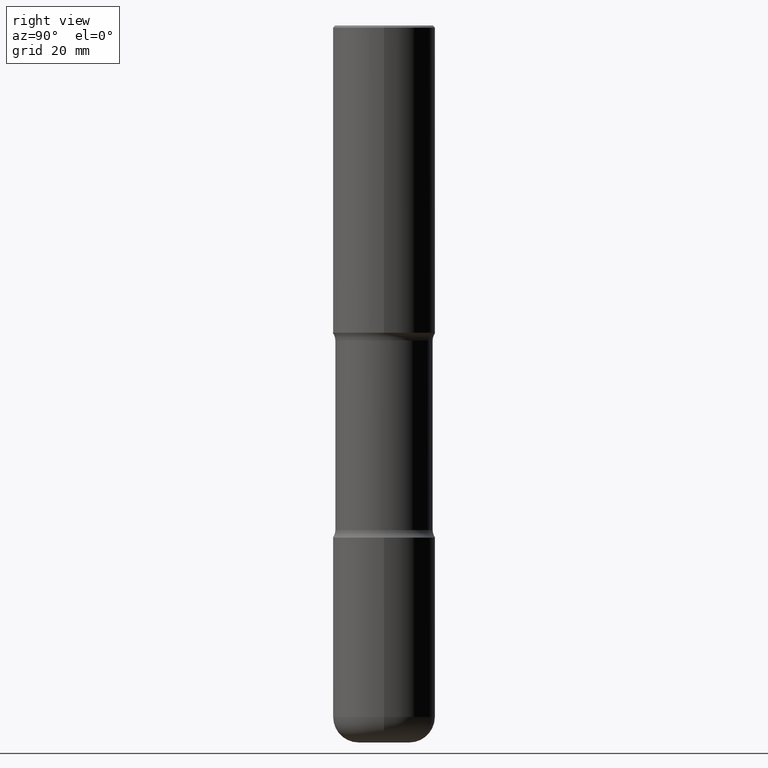
[diagram: clean part render]
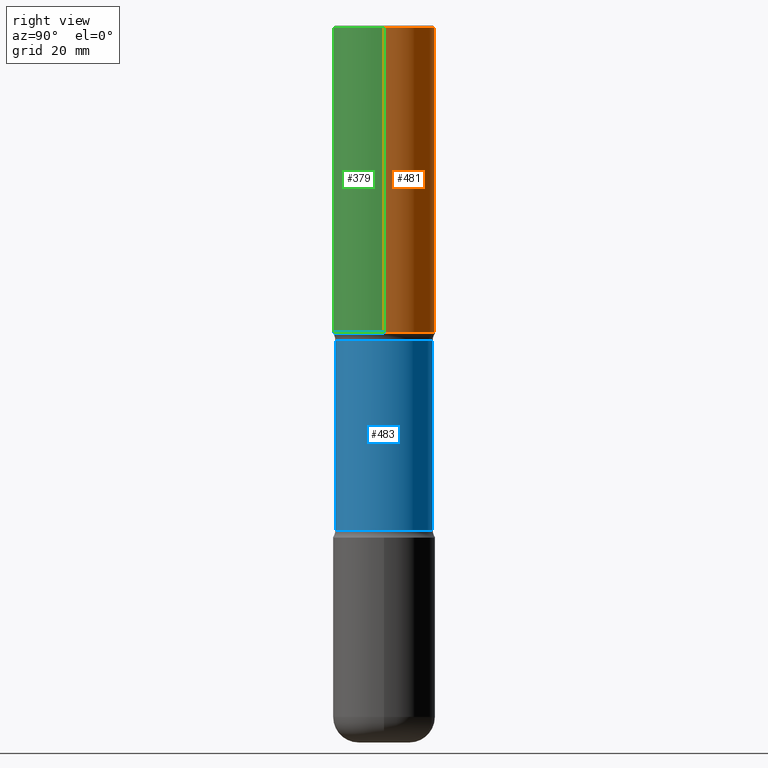
[diagram: same view with three faces highlighted in distinct colors, each labeled with its STEP entity id]
A machine part, right view with three faces highlighted in distinct colors.
Their STEP definitions:

[orange] entity #481 — the highlighted cylindrical surface (partial cylindrical patch) has radius 12.7 mm, axis along (-0, 0, 1).
#38 = AXIS2_PLACEMENT_3D ( 'NONE', #124, #304, #430 ) ;
#59 = VERTEX_POINT ( 'NONE', #159 ) ;
#103 = VECTOR ( 'NONE', #414, 39.37007874015748143 ) ;
#114 = LINE ( 'NONE', #190, #387 ) ;
#117 = ORIENTED_EDGE ( 'NONE', *, *, #438, .T. ) ;
#121 = EDGE_CURVE ( 'NONE', #143, #382, #166, .T. ) ;
#124 = CARTESIAN_POINT ( 'NONE',  ( 7.336406418555407548E-29, -1.047444401652943320E-14, -2.999999999999999112 ) ) ;
#143 = VERTEX_POINT ( 'NONE', #297 ) ;
#149 = EDGE_CURVE ( 'NONE', #59, #229, #183, .T. ) ;
#159 = CARTESIAN_POINT ( 'NONE',  ( 0.4999999999999999445, -3.500078625662628685E-15, -0.02000000000000013572 ) ) ;
#165 = CARTESIAN_POINT ( 'NONE',  ( 0.000000000000000000, 0.000000000000000000, 0.000000000000000000 ) ) ;
#166 = CIRCLE ( 'NONE', #38, 0.5000000000000002220 ) ;
#183 = CIRCLE ( 'NONE', #318, 0.4999999999999999445 ) ;
#190 = CARTESIAN_POINT ( 'NONE',  ( -0.5000000000000001110, 3.552713678800501718E-15, -2.459467545127453732E-29 ) ) ;
#191 = ORIENTED_EDGE ( 'NONE', *, *, #149, .F. ) ;
#193 = ORIENTED_EDGE ( 'NONE', *, *, #321, .F. ) ;
#229 = VERTEX_POINT ( 'NONE', #325 ) ;
#235 = CARTESIAN_POINT ( 'NONE',  ( 0.5000000000000001110, -3.491481338843134539E-15, 2.438088387897968457E-29 ) ) ;
#276 = CARTESIAN_POINT ( 'NONE',  ( -0.5000000000000002220, -1.719423142852643572E-15, -2.999999999999999112 ) ) ;
#297 = CARTESIAN_POINT ( 'NONE',  ( 0.5000000000000002220, -1.396592535537256813E-14, -2.999999999999999112 ) ) ;
#304 = DIRECTION ( 'NONE',  ( -2.445468806185136597E-29, 3.491481338843145583E-15, 1.000000000000000000 ) ) ;
#306 = CARTESIAN_POINT ( 'NONE',  ( 4.890937612370306439E-31, -6.982962677686338448E-17, -0.02000000000000013572 ) ) ;
#317 = AXIS2_PLACEMENT_3D ( 'NONE', #165, #474, #512 ) ;
#318 = AXIS2_PLACEMENT_3D ( 'NONE', #306, #475, #388 ) ;
#321 = EDGE_CURVE ( 'NONE', #143, #59, #464, .T. ) ;
#325 = CARTESIAN_POINT ( 'NONE',  ( -0.4999999999999999445, 3.421651712066269663E-15, -0.02000000000000013572 ) ) ;
#382 = VERTEX_POINT ( 'NONE', #276 ) ;
#385 = FACE_OUTER_BOUND ( 'NONE', #463, .T. ) ;
#387 = VECTOR ( 'NONE', #461, 39.37007874015748143 ) ;
#388 = DIRECTION ( 'NONE',  ( 1.000000000000000000, -6.982962677686266711E-15, 0.000000000000000000 ) ) ;
#414 = DIRECTION ( 'NONE',  ( -2.445468806185136877E-29, 3.491481338843145188E-15, 1.000000000000000000 ) ) ;
#430 = DIRECTION ( 'NONE',  ( 1.000000000000000000, -6.982962677686267499E-15, 0.000000000000000000 ) ) ;
#438 = EDGE_CURVE ( 'NONE', #382, #229, #114, .T. ) ;
#461 = DIRECTION ( 'NONE',  ( -2.445468806185136877E-29, 3.491481338843145188E-15, 1.000000000000000000 ) ) ;
#463 = EDGE_LOOP ( 'NONE', ( #487, #117, #191, #193 ) ) ;
#464 = LINE ( 'NONE', #235, #103 ) ;
#474 = DIRECTION ( 'NONE',  ( -2.445468806185136597E-29, 3.491481338843145583E-15, 1.000000000000000000 ) ) ;
#475 = DIRECTION ( 'NONE',  ( -2.445468806185136597E-29, 3.491481338843145583E-15, 1.000000000000000000 ) ) ;
#481 = ADVANCED_FACE ( 'NONE', ( #385 ), #560, .T. ) ;
#487 = ORIENTED_EDGE ( 'NONE', *, *, #121, .T. ) ;
#512 = DIRECTION ( 'NONE',  ( 1.000000000000000000, -6.982962677686267499E-15, 4.876176775795935793E-29 ) ) ;
#560 = CYLINDRICAL_SURFACE ( 'NONE', #317, 0.5000000000000001110 ) ;

[blue] entity #483 — the highlighted cylindrical surface (partial cylindrical patch) has radius 12.065 mm, axis along (0, -0, -1).
#3 = CARTESIAN_POINT ( 'NONE',  ( 3.316907271901148659E-15, 0.4749999999999757194, -7.000000000000000000 ) ) ;
#4 = VECTOR ( 'NONE', #78, 39.37007874015748143 ) ;
#26 = EDGE_CURVE ( 'NONE', #538, #551, #248, .T. ) ;
#27 = CIRCLE ( 'NONE', #357, 0.4750000000000001443 ) ;
#42 = EDGE_CURVE ( 'NONE', #105, #551, #213, .T. ) ;
#78 = DIRECTION ( 'NONE',  ( 2.495638921910708014E-29, -3.419634877618474112E-15, -1.000000000000000000 ) ) ;
#79 = LINE ( 'NONE', #3, #265 ) ;
#88 = FACE_OUTER_BOUND ( 'NONE', #425, .T. ) ;
#91 = CARTESIAN_POINT ( 'NONE',  ( -3.344492773913550718E-15, -0.4750000000000109690, -3.074999999999998401 ) ) ;
#105 = VERTEX_POINT ( 'NONE', #133 ) ;
#133 = CARTESIAN_POINT ( 'NONE',  ( 3.316907271901096594E-15, 0.4749999999999827693, -4.924999999999999822 ) ) ;
#157 = DIRECTION ( 'NONE',  ( 2.495638921910708014E-29, -3.419634877618474112E-15, -1.000000000000000000 ) ) ;
#208 = CARTESIAN_POINT ( 'NONE',  ( 1.204017111178237438E-28, -1.720093407839433761E-14, -4.924999999999998046 ) ) ;
#209 = DIRECTION ( 'NONE',  ( 6.982962677686265922E-15, 1.000000000000000000, -2.300503573612011028E-15 ) ) ;
#213 = CIRCLE ( 'NONE', #369, 0.4749999999999999778 ) ;
#248 = LINE ( 'NONE', #460, #4 ) ;
#249 = CARTESIAN_POINT ( 'NONE',  ( 1.721862187474709565E-28, -2.429667644945267101E-14, -6.999999999999998224 ) ) ;
#259 = DIRECTION ( 'NONE',  ( 2.495638921910708014E-29, -3.419634877618474112E-15, -1.000000000000000000 ) ) ;
#265 = VECTOR ( 'NONE', #522, 39.37007874015748143 ) ;
#282 = CARTESIAN_POINT ( 'NONE',  ( 3.316907271901051235E-15, 0.4749999999999892641, -3.075000000000001510 ) ) ;
#292 = DIRECTION ( 'NONE',  ( 6.982962677686265133E-15, 1.000000000000000000, -3.450755360418015555E-15 ) ) ;
#324 = ORIENTED_EDGE ( 'NONE', *, *, #26, .T. ) ;
#345 = DIRECTION ( 'NONE',  ( 2.495638921910708014E-29, -3.419634877618474112E-15, -1.000000000000000000 ) ) ;
#357 = AXIS2_PLACEMENT_3D ( 'NONE', #555, #259, #292 ) ;
#369 = AXIS2_PLACEMENT_3D ( 'NONE', #208, #157, #421 ) ;
#377 = VERTEX_POINT ( 'NONE', #282 ) ;
#413 = AXIS2_PLACEMENT_3D ( 'NONE', #249, #345, #209 ) ;
#421 = DIRECTION ( 'NONE',  ( 6.982962677686265133E-15, 1.000000000000000000, -2.300503573612011422E-15 ) ) ;
#425 = EDGE_LOOP ( 'NONE', ( #543, #324, #505, #495 ) ) ;
#457 = EDGE_CURVE ( 'NONE', #377, #538, #27, .T. ) ;
#460 = CARTESIAN_POINT ( 'NONE',  ( -3.258736548941304889E-15, -0.4750000000000243472, -6.999999999999997335 ) ) ;
#477 = EDGE_CURVE ( 'NONE', #377, #105, #79, .T. ) ;
#483 = ADVANCED_FACE ( 'NONE', ( #88 ), #514, .T. ) ;
#495 = ORIENTED_EDGE ( 'NONE', *, *, #477, .F. ) ;
#505 = ORIENTED_EDGE ( 'NONE', *, *, #42, .F. ) ;
#514 = CYLINDRICAL_SURFACE ( 'NONE', #413, 0.4750000000000000333 ) ;
#522 = DIRECTION ( 'NONE',  ( 2.495638921910708014E-29, -3.419634877618474112E-15, -1.000000000000000000 ) ) ;
#538 = VERTEX_POINT ( 'NONE', #91 ) ;
#543 = ORIENTED_EDGE ( 'NONE', *, *, #457, .T. ) ;
#551 = VERTEX_POINT ( 'NONE', #552 ) ;
#552 = CARTESIAN_POINT ( 'NONE',  ( -3.344492773913500625E-15, -0.4750000000000171863, -4.924999999999997158 ) ) ;
#555 = CARTESIAN_POINT ( 'NONE',  ( 7.423239106247569958E-29, -1.087460955480016368E-14, -3.074999999999999734 ) ) ;

[green] entity #379 — the highlighted cylindrical surface (partial cylindrical patch) has radius 12.7 mm, axis along (-0, 0, 1).
#28 = FACE_OUTER_BOUND ( 'NONE', #428, .T. ) ;
#31 = EDGE_CURVE ( 'NONE', #382, #143, #459, .T. ) ;
#59 = VERTEX_POINT ( 'NONE', #159 ) ;
#67 = DIRECTION ( 'NONE',  ( -2.445468806185136597E-29, 3.491481338843145583E-15, 1.000000000000000000 ) ) ;
#69 = CARTESIAN_POINT ( 'NONE',  ( 7.336406418555407548E-29, -1.047444401652943320E-14, -2.999999999999999112 ) ) ;
#103 = VECTOR ( 'NONE', #414, 39.37007874015748143 ) ;
#114 = LINE ( 'NONE', #190, #387 ) ;
#118 = CYLINDRICAL_SURFACE ( 'NONE', #163, 0.5000000000000001110 ) ;
#139 = AXIS2_PLACEMENT_3D ( 'NONE', #69, #239, #286 ) ;
#141 = EDGE_CURVE ( 'NONE', #229, #59, #360, .T. ) ;
#143 = VERTEX_POINT ( 'NONE', #297 ) ;
#159 = CARTESIAN_POINT ( 'NONE',  ( 0.4999999999999999445, -3.500078625662628685E-15, -0.02000000000000013572 ) ) ;
#163 = AXIS2_PLACEMENT_3D ( 'NONE', #374, #67, #381 ) ;
#190 = CARTESIAN_POINT ( 'NONE',  ( -0.5000000000000001110, 3.552713678800501718E-15, -2.459467545127453732E-29 ) ) ;
#202 = ORIENTED_EDGE ( 'NONE', *, *, #321, .T. ) ;
#210 = DIRECTION ( 'NONE',  ( 1.000000000000000000, -6.982962677686266711E-15, 0.000000000000000000 ) ) ;
#211 = ORIENTED_EDGE ( 'NONE', *, *, #141, .F. ) ;
#229 = VERTEX_POINT ( 'NONE', #325 ) ;
#235 = CARTESIAN_POINT ( 'NONE',  ( 0.5000000000000001110, -3.491481338843134539E-15, 2.438088387897968457E-29 ) ) ;
#239 = DIRECTION ( 'NONE',  ( -2.445468806185136597E-29, 3.491481338843145583E-15, 1.000000000000000000 ) ) ;
#276 = CARTESIAN_POINT ( 'NONE',  ( -0.5000000000000002220, -1.719423142852643572E-15, -2.999999999999999112 ) ) ;
#286 = DIRECTION ( 'NONE',  ( 1.000000000000000000, -6.982962677686267499E-15, 0.000000000000000000 ) ) ;
#297 = CARTESIAN_POINT ( 'NONE',  ( 0.5000000000000002220, -1.396592535537256813E-14, -2.999999999999999112 ) ) ;
#314 = ORIENTED_EDGE ( 'NONE', *, *, #31, .T. ) ;
#321 = EDGE_CURVE ( 'NONE', #143, #59, #464, .T. ) ;
#325 = CARTESIAN_POINT ( 'NONE',  ( -0.4999999999999999445, 3.421651712066269663E-15, -0.02000000000000013572 ) ) ;
#360 = CIRCLE ( 'NONE', #536, 0.4999999999999999445 ) ;
#374 = CARTESIAN_POINT ( 'NONE',  ( 0.000000000000000000, 0.000000000000000000, 0.000000000000000000 ) ) ;
#379 = ADVANCED_FACE ( 'NONE', ( #28 ), #118, .T. ) ;
#381 = DIRECTION ( 'NONE',  ( 1.000000000000000000, -6.982962677686267499E-15, 4.876176775795935793E-29 ) ) ;
#382 = VERTEX_POINT ( 'NONE', #276 ) ;
#387 = VECTOR ( 'NONE', #461, 39.37007874015748143 ) ;
#394 = DIRECTION ( 'NONE',  ( -2.445468806185136597E-29, 3.491481338843145583E-15, 1.000000000000000000 ) ) ;
#396 = CARTESIAN_POINT ( 'NONE',  ( 4.890937612370306439E-31, -6.982962677686338448E-17, -0.02000000000000013572 ) ) ;
#414 = DIRECTION ( 'NONE',  ( -2.445468806185136877E-29, 3.491481338843145188E-15, 1.000000000000000000 ) ) ;
#428 = EDGE_LOOP ( 'NONE', ( #462, #314, #202, #211 ) ) ;
#438 = EDGE_CURVE ( 'NONE', #382, #229, #114, .T. ) ;
#459 = CIRCLE ( 'NONE', #139, 0.5000000000000002220 ) ;
#461 = DIRECTION ( 'NONE',  ( -2.445468806185136877E-29, 3.491481338843145188E-15, 1.000000000000000000 ) ) ;
#462 = ORIENTED_EDGE ( 'NONE', *, *, #438, .F. ) ;
#464 = LINE ( 'NONE', #235, #103 ) ;
#536 = AXIS2_PLACEMENT_3D ( 'NONE', #396, #394, #210 ) ;